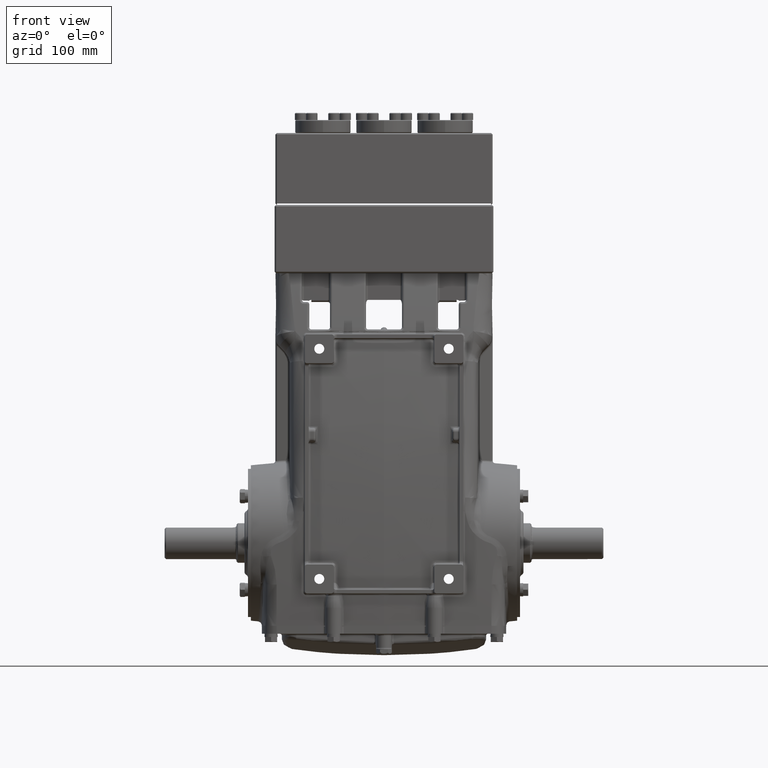
[diagram: clean part render]
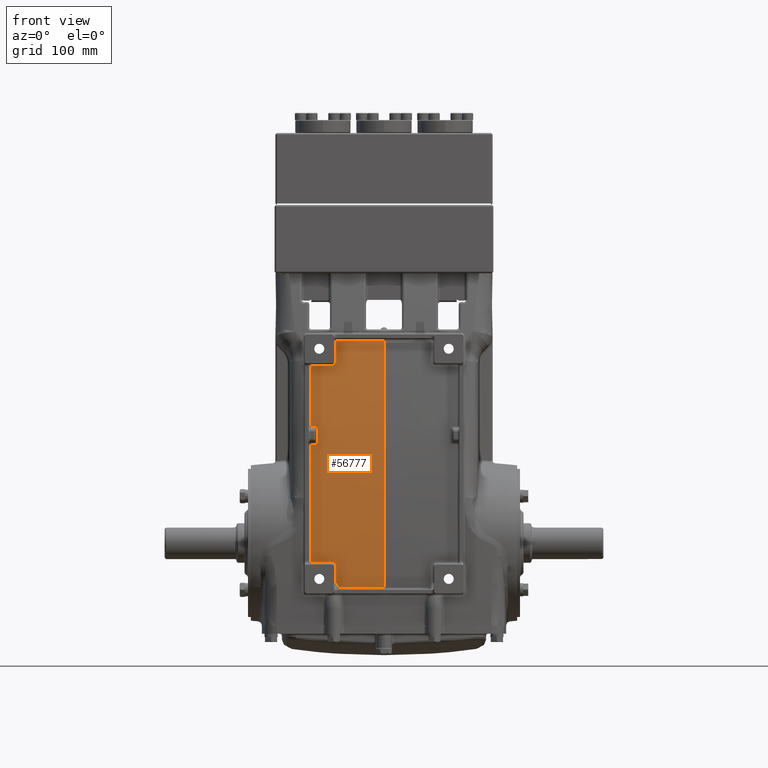
[diagram: same view with one face highlighted and labeled with its STEP entity id]
A machine part, front view. The second image highlights one B-rep face of the part: STEP entity #56777.
In plain terms, the highlighted face is a freeform B-spline surface patch.
Its self-contained STEP definition (entity closure, byte-faithful):
#123 = CARTESIAN_POINT ( 'NONE',  ( -2.792751531202446902, -3.853427452750522342, 9.720233864941249635 ) ) ;
#383 = CARTESIAN_POINT ( 'NONE',  ( -2.708190288782601929, -4.552099645568209674, -4.656973560824543057 ) ) ;
#703 = CARTESIAN_POINT ( 'NONE',  ( -2.869281754821064290, -3.852085522503557069, 9.708001295117043128 ) ) ;
#2164 = VERTEX_POINT ( 'NONE', #62382 ) ;
#2821 = CARTESIAN_POINT ( 'NONE',  ( -4.009067684533873965, -4.561309355163068346, -1.063256557448129414 ) ) ;
#2849 = ORIENTED_EDGE ( 'NONE', *, *, #35908, .T. ) ;
#3254 = CARTESIAN_POINT ( 'NONE',  ( -10.04577710926004208, -2.315852591883929890, 14.76377952755905376 ) ) ;
#3642 = CARTESIAN_POINT ( 'NONE',  ( -8.065446248077345004, -3.888393654132777488, 8.422581710757270912 ) ) ;
#3858 = CARTESIAN_POINT ( 'NONE',  ( -2.633408173276915676, -4.626008312478406381, -1.299123915918647620 ) ) ;
#3947 = CARTESIAN_POINT ( 'NONE',  ( -2.561217022510075658, -4.622174225298794070, -2.252299614874098577 ) ) ;
#4032 = CARTESIAN_POINT ( 'NONE',  ( -9.373807410501107995, -3.984680738766252173, -4.527559055118117293 ) ) ;
#4274 = CARTESIAN_POINT ( 'NONE',  ( -2.633461050662142977, -3.655664824017160974, 11.08388957593362711 ) ) ;
#4431 = CARTESIAN_POINT ( 'NONE',  ( -8.687254691438219822, -2.497755069112371995, 14.76377952755909462 ) ) ;
#4737 = CARTESIAN_POINT ( 'NONE',  ( -1.633027103211280417, -4.651716990583321554, -2.439146517294747962 ) ) ;
#4821 = CARTESIAN_POINT ( 'NONE',  ( -1.924953776098369485, -4.578667073187570047, -4.592266307971317296 ) ) ;
#4864 = B_SPLINE_CURVE_WITH_KNOTS ( 'NONE', 3,
 ( #30299, #42314, #24671, #67544 ),
 .UNSPECIFIED., .F., .F.,
 ( 4, 4 ),
 ( 0.000000000000000000, 0.08500869428581235565 ),
 .UNSPECIFIED. ) ;
#4993 = ORIENTED_EDGE ( 'NONE', *, *, #56991, .F. ) ;
#5212 = CARTESIAN_POINT ( 'NONE',  ( -0.2938242304873521227, -3.031496062992124596, 14.76377952755905376 ) ) ;
#5352 = CARTESIAN_POINT ( 'NONE',  ( -2.853661428704624470, -3.852718271660905192, 9.708001154008286449 ) ) ;
#5615 = CARTESIAN_POINT ( 'NONE',  ( -5.413753015067796603, -4.392851647018765959, -4.721680813677779476 ) ) ;
#5753 = CARTESIAN_POINT ( 'NONE',  ( -2.645681255259437759, -3.838088212996774384, 9.868500916384387978 ) ) ;
#5806 = CARTESIAN_POINT ( 'NONE',  ( -4.009099260313161217, -4.191345367742774108, 6.386217024925107566 ) ) ;
#5987 = CARTESIAN_POINT ( 'NONE',  ( -2.668988596127266799, -4.624672092610369489, -1.174300191169862284 ) ) ;
#5993 = CARTESIAN_POINT ( 'NONE',  ( -0.7397320881632531986, -4.600979020265389074, -4.592266307971323513 ) ) ;
#6387 = CARTESIAN_POINT ( 'NONE',  ( -2.764743968394219653, -4.620880156396577121, -1.087110397389638772 ) ) ;
#6393 = CARTESIAN_POINT ( 'NONE',  ( -4.639310515179054129, -4.448246577413247138, -4.721680813677765265 ) ) ;
#6592 = CARTESIAN_POINT ( 'NONE',  ( -3.616051193212727721, -4.212515188752981921, 6.386213672272969433 ) ) ;
#7096 = CARTESIAN_POINT ( 'NONE',  ( -3.616044454389348850, -4.301933441501103239, 5.403433961941422226 ) ) ;
#7424 = B_SPLINE_CURVE_WITH_KNOTS ( 'NONE', 3,
 ( #63574, #7918, #8717, #19533 ),
 .UNSPECIFIED., .F., .F.,
 ( 4, 4 ),
 ( 1.387778780781445676E-17, 0.02898646123601396341 ),
 .UNSPECIFIED. ) ;
#7689 = CARTESIAN_POINT ( 'NONE',  ( -4.009091750255389108, -4.280763994658505212, 5.403436896546486956 ) ) ;
#7918 = CARTESIAN_POINT ( 'NONE',  ( -3.629276353741744732, -4.582824952503464999, -1.063256691878862847 ) ) ;
#8559 = CARTESIAN_POINT ( 'NONE',  ( -3.616051193212727721, -4.212515188752981921, 6.386213672272969433 ) ) ;
#8717 = CARTESIAN_POINT ( 'NONE',  ( -3.249324048445274560, -4.601277251705913507, -1.063256823771190129 ) ) ;
#9615 = CARTESIAN_POINT ( 'NONE',  ( -4.009084545783799136, -4.366297798552408516, 4.327476322675768650 ) ) ;
#9646 = CARTESIAN_POINT ( 'NONE',  ( -10.04577710926009182, -3.887951540411600959, -4.592266307971328843 ) ) ;
#10037 = CARTESIAN_POINT ( 'NONE',  ( -9.804603538636959215, -4.195612680810072881, 1.943166230203482225 ) ) ;
#10424 = CARTESIAN_POINT ( 'NONE',  ( -6.832793557027403430, -4.274448491943524608, -4.592266307971325290 ) ) ;
#10466 = VERTEX_POINT ( 'NONE', #61830 ) ;
#10827 = CARTESIAN_POINT ( 'NONE',  ( -2.645560017094310101, -4.625577472127104350, -1.222825218996533625 ) ) ;
#10833 = CARTESIAN_POINT ( 'NONE',  ( -8.030208900442749709, -2.576162122246953956, 14.76377952755909284 ) ) ;
#10973 = CARTESIAN_POINT ( 'NONE',  ( -2.712919804652293099, -3.849994944742353820, 9.766627177032775720 ) ) ;
#11228 = CARTESIAN_POINT ( 'NONE',  ( -2.821676141139911831, -2.978136681165881150, 14.76377952755918699 ) ) ;
#11376 = CARTESIAN_POINT ( 'NONE',  ( -2.681283402009699390, -3.846391426601914798, 9.800633888478397893 ) ) ;
#11477 = B_SPLINE_CURVE_WITH_KNOTS ( 'NONE', 3,
 ( #34638, #16642, #78254, #41047 ),
 .UNSPECIFIED., .F., .F.,
 ( 4, 4 ),
 ( 0.000000000000000000, 1.000000000000000000 ),
 .UNSPECIFIED. ) ;
#11628 = CARTESIAN_POINT ( 'NONE',  ( -4.649375982716229316, -4.726046614213196939, 1.943166230203471567 ) ) ;
#11949 = CARTESIAN_POINT ( 'NONE',  ( -4.009132247748159017, -3.796718537745803257, 9.708013700501851417 ) ) ;
#12019 = CARTESIAN_POINT ( 'NONE',  ( -2.725582099047808349, -4.622441117694928714, -1.111434826511108476 ) ) ;
#12025 = CARTESIAN_POINT ( 'NONE',  ( -2.784098044332857125, -4.295940717290989141, 8.422581710757331308 ) ) ;
#12089 = B_SPLINE_CURVE_WITH_KNOTS ( 'NONE', 3,
 ( #22921, #47337, #71789, #16934 ),
 .UNSPECIFIED., .F., .F.,
 ( 4, 4 ),
 ( 0.000000000000000000, 0.02928519298519093733 ),
 .UNSPECIFIED. ) ;
#12165 = CARTESIAN_POINT ( 'NONE',  ( -2.838203157779700447, -3.853123549072879683, 9.709538004407617606 ) ) ;
#12408 = CARTESIAN_POINT ( 'NONE',  ( -2.786150692338191348, -4.620022506536527906, -1.078245028240014669 ) ) ;
#12415 = CARTESIAN_POINT ( 'NONE',  ( -0.2832288182468694071, -4.347787444496944431, 8.422581710757240714 ) ) ;
#12912 = CARTESIAN_POINT ( 'NONE',  ( -3.616044454389348850, -4.301933441501103239, 5.403433961941422226 ) ) ;
#13513 = CARTESIAN_POINT ( 'NONE',  ( -3.629334840244932803, -3.818235481448486457, 9.708008868474776065 ) ) ;
#14207 = CARTESIAN_POINT ( 'NONE',  ( -1.756019466418914821, -3.688288809523445622, 11.08388144345502546 ) ) ;
#14917 = ORIENTED_EDGE ( 'NONE', *, *, #48641, .T. ) ;
#15317 = CARTESIAN_POINT ( 'NONE',  ( -2.633451682630481017, -3.827767035953573593, 9.943866171489569084 ) ) ;
#15572 = CARTESIAN_POINT ( 'NONE',  ( -2.595409234286698119, -4.621463490786902106, -2.209614886988585436 ) ) ;
#15659 = CARTESIAN_POINT ( 'NONE',  ( -6.805403164105268132, -4.550193385702355542, 1.943166230203468459 ) ) ;
#16447 = CARTESIAN_POINT ( 'NONE',  ( -8.749245569794030786, -4.335251050053626543, 1.943166230203497991 ) ) ;
#16642 = CARTESIAN_POINT ( 'NONE',  ( 2.138533143211187579E-14, -4.413031083295456014, 6.613240948986014445 ) ) ;
#16738 = CARTESIAN_POINT ( 'NONE',  ( -2.869235462077895704, -4.616673264439084434, -1.063256936052564772 ) ) ;
#16829 = CARTESIAN_POINT ( 'NONE',  ( -8.781170872147274764, -4.052738791544205910, -4.721680813677760824 ) ) ;
#16934 = CARTESIAN_POINT ( 'NONE',  ( -2.633451682630481017, -3.827767035953573593, 9.943866171489569084 ) ) ;
#17225 = CARTESIAN_POINT ( 'NONE',  ( -3.729488559111926893, -4.251260959985939003, 8.422581710757222950 ) ) ;
#17616 = CARTESIAN_POINT ( 'NONE',  ( -1.925340981245132754, -4.581360688026997252, -4.527559055118101305 ) ) ;
#17753 = CARTESIAN_POINT ( 'NONE',  ( -2.807609554183104539, -3.853480852725197803, 9.715674560606947452 ) ) ;
#17994 = CARTESIAN_POINT ( 'NONE',  ( -2.751205790464350098, -4.621420892464555230, -1.094344180641083630 ) ) ;
#18002 = CARTESIAN_POINT ( 'NONE',  ( -0.2619320396434957066, -4.603595011519804103, -4.592266307971327954 ) ) ;
#18139 = CARTESIAN_POINT ( 'NONE',  ( -2.691205871054139109, -3.847737429745157645, 9.788464922674490865 ) ) ;
#18401 = CARTESIAN_POINT ( 'NONE',  ( -0.2620379937659005343, -4.606299212598425008, -4.527559055118111964 ) ) ;
#18552 = VERTEX_POINT ( 'NONE', #7689 ) ;
#18756 = CARTESIAN_POINT ( 'NONE',  ( -2.633408177355273327, -4.625790264749591429, -1.589326262183604399 ) ) ;
#18785 = CARTESIAN_POINT ( 'NONE',  ( -5.408835557366600710, -4.671702001365406254, 1.943166230203468459 ) ) ;
#18817 = ORIENTED_EDGE ( 'NONE', *, *, #75101, .T. ) ;
#18984 = CARTESIAN_POINT ( 'NONE',  ( -3.878103101087254867, -4.198766236469249513, 6.386215845647989831 ) ) ;
#19533 = CARTESIAN_POINT ( 'NONE',  ( -2.869235462077895704, -4.616673264439084434, -1.063256936052564772 ) ) ;
#20295 = VERTEX_POINT ( 'NONE', #4274 ) ;
#20401 = CARTESIAN_POINT ( 'NONE',  ( -4.009087921353016171, -4.326285157352316446, 4.865810634977489002 ) ) ;
#20460 = CARTESIAN_POINT ( 'NONE',  ( -3.878095849180120069, -4.288184763484342632, 5.403435864250364595 ) ) ;
#20797 = EDGE_CURVE ( 'NONE', #77422, #10466, #66393, .T. ) ;
#20916 = CARTESIAN_POINT ( 'NONE',  ( -3.616051193212727721, -4.212515188752981921, 6.386213672272969433 ) ) ;
#21195 = CARTESIAN_POINT ( 'NONE',  ( -4.009076246432647928, -4.464142590308505021, 2.711700979093898400 ) ) ;
#21228 = CARTESIAN_POINT ( 'NONE',  ( -6.225699120453859869, -4.603769284748519652, 1.943166230203460909 ) ) ;
#21590 = CARTESIAN_POINT ( 'NONE',  ( -4.009078708508510225, -4.435224281480957487, 3.250428491501163197 ) ) ;
#21626 = CARTESIAN_POINT ( 'NONE',  ( -8.135920943346530265, -4.138785722996266792, -4.527559055118102194 ) ) ;
#21838 = EDGE_CURVE ( 'NONE', #18552, #64262, #78548, .T. ) ;
#22028 = CARTESIAN_POINT ( 'NONE',  ( -8.718250130616125304, -3.810182812353625881, 8.422581710757270912 ) ) ;
#22427 = CARTESIAN_POINT ( 'NONE',  ( -10.04577710926007583, -4.161075849352311451, 1.943166230203482225 ) ) ;
#22636 = CARTESIAN_POINT ( 'NONE',  ( -2.633408445068508463, -4.620541372319329376, -2.169705992555975183 ) ) ;
#22803 = CARTESIAN_POINT ( 'NONE',  ( -2.793509117844862999, -4.619727269208481424, -1.075614104504940327 ) ) ;
#22811 = CARTESIAN_POINT ( 'NONE',  ( -9.813594160922399112, -3.921200885824479787, -4.592266307971329731 ) ) ;
#22921 = CARTESIAN_POINT ( 'NONE',  ( -2.633461050662142977, -3.655664824017160974, 11.08388957593362711 ) ) ;
#23117 = CARTESIAN_POINT ( 'NONE',  ( -2.500623379743942998, -4.623138100157921926, -2.342764431144773951 ) ) ;
#23202 = CARTESIAN_POINT ( 'NONE',  ( -3.677771778863302199, -4.509885198506749404, -4.592266307971359041 ) ) ;
#23342 = CARTESIAN_POINT ( 'NONE',  ( -2.634958507792321214, -3.832110682459297202, 9.913170577341473333 ) ) ;
#23596 = CARTESIAN_POINT ( 'NONE',  ( -0.8149290258095023276, -3.028218001076291355, 14.76377952755897383 ) ) ;
#23973 = ORIENTED_EDGE ( 'NONE', *, *, #21838, .T. ) ;
#23993 = CARTESIAN_POINT ( 'NONE',  ( -1.270915354491187976, -4.587217357037975951, -4.721680813677750166 ) ) ;
#24130 = CARTESIAN_POINT ( 'NONE',  ( -2.750807953098200365, -3.852318133119502441, 9.739776564277198290 ) ) ;
#24385 = CARTESIAN_POINT ( 'NONE',  ( -5.900791666314808552E-15, -4.606299212598425008, -4.527559055118112852 ) ) ;
#24582 = CARTESIAN_POINT ( 'NONE',  ( -3.616048795176231678, -4.244373793230554526, 6.058810424978555709 ) ) ;
#24671 = CARTESIAN_POINT ( 'NONE',  ( -4.009108318091917589, -4.083358441636023350, 7.495968248677195689 ) ) ;
#24791 = CARTESIAN_POINT ( 'NONE',  ( -5.404061326588741387, -4.143078516905423392, 8.422581710757231832 ) ) ;
#25009 = CARTESIAN_POINT ( 'NONE',  ( -2.633461050662142977, -3.655664824017160974, 11.08388957593362711 ) ) ;
#25373 = B_SPLINE_CURVE_WITH_KNOTS ( 'NONE', 3,
 ( #5806, #18984, #67855, #8559 ),
 .UNSPECIFIED., .F., .F.,
 ( 4, 4 ),
 ( 1.947840340079970283E-16, 0.009997897390823021896 ),
 .UNSPECIFIED. ) ;
#26375 = EDGE_CURVE ( 'NONE', #10466, #72825, #26461, .T. ) ;
#26461 = B_SPLINE_CURVE_WITH_KNOTS ( 'NONE', 3,
 ( #703, #43150, #13513, #11949 ),
 .UNSPECIFIED., .F., .F.,
 ( 4, 4 ),
 ( 0.000000000000000000, 0.02898692912293929919 ),
 .UNSPECIFIED. ) ;
#26841 = B_SPLINE_CURVE_WITH_KNOTS ( 'NONE', 3,
 ( #12912, #68570, #20460, #38105 ),
 .UNSPECIFIED., .F., .F.,
 ( 4, 4 ),
 ( 6.938893903907228378E-17, 0.009997877322231155453 ),
 .UNSPECIFIED. ) ;
#27246 = CARTESIAN_POINT ( 'NONE',  ( -6.188065023527709485, -2.761802089765181822, 14.76377952755900935 ) ) ;
#27611 = CARTESIAN_POINT ( 'NONE',  ( -4.009070229047597245, -4.534280010405843164, 1.094908286316123025 ) ) ;
#27646 = CARTESIAN_POINT ( 'NONE',  ( -10.04577710926006162, -3.632143973388746616, 8.422581710757240714 ) ) ;
#28032 = CARTESIAN_POINT ( 'NONE',  ( -8.780550963363717543, -4.058224466466718638, -4.592266307971327954 ) ) ;
#28349 = CARTESIAN_POINT ( 'NONE',  ( -2.473840061928060496, -4.623398243447898182, -2.390294904614319815 ) ) ;
#28432 = CARTESIAN_POINT ( 'NONE',  ( -8.136625690299220892, -4.133296123846644576, -4.656973560824535063 ) ) ;
#28827 = CARTESIAN_POINT ( 'NONE',  ( -9.374243253404326737, -3.979213428622593973, -4.656973560824549274 ) ) ;
#29139 = CARTESIAN_POINT ( 'NONE',  ( -2.613787791955300754, -4.621037681999546010, -2.189111230793896024 ) ) ;
#29220 = CARTESIAN_POINT ( 'NONE',  ( -1.371080488539591968, -3.018683991878269079, 14.76377952755904843 ) ) ;
#29614 = CARTESIAN_POINT ( 'NONE',  ( -2.708941850718743272, -4.557477794633046031, -4.527559055118110187 ) ) ;
#29761 = CARTESIAN_POINT ( 'NONE',  ( -2.639396831441881641, -3.835158132531951924, 9.890685908161072959 ) ) ;
#30014 = CARTESIAN_POINT ( 'NONE',  ( -4.639408238164851817, -4.450943665149169171, -4.656973560824549274 ) ) ;
#30299 = CARTESIAN_POINT ( 'NONE',  ( -4.009132247748159017, -3.796718537745803257, 9.708013700501851417 ) ) ;
#30412 = CARTESIAN_POINT ( 'NONE',  ( 1.301789904605454270E-14, -3.031496062992124596, 14.76377952755905376 ) ) ;
#30711 = CARTESIAN_POINT ( 'NONE',  ( -2.449077410714803449, -4.623510098356429232, -2.439147228008068602 ) ) ;
#30798 = CARTESIAN_POINT ( 'NONE',  ( -5.413705272760017451, -4.395558932012422204, -4.656973560824563485 ) ) ;
#31656 = VERTEX_POINT ( 'NONE', #39324 ) ;
#34043 = CARTESIAN_POINT ( 'NONE',  ( -9.308430975018255893, -2.418713787122484415, 14.76377952755900935 ) ) ;
#34435 = FACE_OUTER_BOUND ( 'NONE', #53400, .T. ) ;
#34638 = CARTESIAN_POINT ( 'NONE',  ( 6.222606604880411818E-16, -3.704600613205711657, 11.08387675029587349 ) ) ;
#34792 = VERTEX_POINT ( 'NONE', #22636 ) ;
#34830 = CARTESIAN_POINT ( 'NONE',  ( -7.550252404699338449, -4.201328635874852502, -4.592266307971317296 ) ) ;
#35225 = CARTESIAN_POINT ( 'NONE',  ( -2.641027938767021688, -4.625748410727640980, -1.237653653290637035 ) ) ;
#35231 = CARTESIAN_POINT ( 'NONE',  ( -4.639603684136446304, -4.456337840621012347, -4.527559055118117293 ) ) ;
#35274 = VERTEX_POINT ( 'NONE', #47153 ) ;
#35371 = CARTESIAN_POINT ( 'NONE',  ( -2.744094817158744259, -3.852008386760988223, 9.743824653417735959 ) ) ;
#35621 = CARTESIAN_POINT ( 'NONE',  ( -6.244892509886193821, -4.326280182861818702, -4.656973560824554603 ) ) ;
#35908 = EDGE_CURVE ( 'NONE', #35274, #20295, #74838, .T. ) ;
#36017 = CARTESIAN_POINT ( 'NONE',  ( -4.639505961150648616, -4.453640752885090315, -4.592266307971333283 ) ) ;
#36183 = ORIENTED_EDGE ( 'NONE', *, *, #39415, .T. ) ;
#36413 = CARTESIAN_POINT ( 'NONE',  ( -2.691688546195931675, -4.623782299950007335, -1.143123225144427435 ) ) ;
#36419 = CARTESIAN_POINT ( 'NONE',  ( -0.7649642831874112758, -4.873881172605420531, 1.943166230203459577 ) ) ;
#36558 = CARTESIAN_POINT ( 'NONE',  ( -2.771421394848513575, -3.853013347860668514, 9.729127848689499203 ) ) ;
#36806 = CARTESIAN_POINT ( 'NONE',  ( -5.399287095810881176, -2.827095526904189082, 14.76377952755905199 ) ) ;
#37225 = B_SPLINE_SURFACE_WITH_KNOTS ( 'NONE', 3, 3, ( 
 ( #3254, #27646, #22427, #46065, #9646, #52053, #46462 ),
 ( #59274, #53242, #10037, #70907, #22811, #40457, #58875 ),
 ( #34043, #40065, #70513, #4032, #47237, #28827, #64904 ),
 ( #4431, #22028, #16447, #71683, #28032, #76473, #16829 ),
 ( #10833, #3642, #71297, #21626, #58480, #28432, #51667 ),
 ( #45667, #40853, #52858, #41238, #34830, #65697, #65297 ),
 ( #77279, #76875, #15659, #70123, #10424, #46852, #57684 ),
 ( #27246, #76086, #21228, #64107, #64516, #35621, #72465 ),
 ( #36806, #24791, #18785, #48414, #72076, #30798, #5615 ),
 ( #42043, #61251, #11628, #35231, #36017, #30014, #6393 ),
 ( #41647, #17225, #55220, #59663, #23202, #43220, #54417 ),
 ( #11228, #12025, #79243, #29614, #48019, #383, #49205 ),
 ( #66872, #78458, #73643, #17616, #4821, #66083, #67656 ),
 ( #29220, #78852, #54024, #53631, #60451, #78064, #23993 ),
 ( #23596, #66473, #36419, #47619, #5993, #60052, #73253 ),
 ( #5212, #12415, #72858, #18401, #18002, #42432, #60852 ),
 ( #30412, #48802, #54819, #24385, #42828, #67264, #45184 ) ),
 .UNSPECIFIED., .F., .F., .F.,
 ( 4, 1, 1, 1, 1, 1, 1, 1, 1, 1, 1, 1, 1, 1, 4 ),
 ( 4, 3, 4 ),
 ( 0.6416899016319266291, 0.6680709144412995126, 0.6910511929030633826, 0.7070270417424607823, 0.7380269954074184513, 0.7537315596691966935, 0.7829012457735833319, 0.7996549019161131033, 0.8403417066807266078, 0.8632468234832121334, 0.8997714546634835164, 0.9419247260028263957, 0.9467756368356592400, 0.9704551915184829181, 1.000000000000000000 ),
 ( 0.000000000000000000, 1.000000000000000000, 1.010000000000000009 ),
 .UNSPECIFIED. ) ;
#37333 = EDGE_CURVE ( 'NONE', #65104, #47471, #39474, .T. ) ;
#38105 = CARTESIAN_POINT ( 'NONE',  ( -4.009091750255389108, -4.280763994658505212, 5.403436896546486956 ) ) ;
#38338 = ORIENTED_EDGE ( 'NONE', *, *, #42303, .T. ) ;
#38349 = CARTESIAN_POINT ( 'NONE',  ( -2.633408267973377459, -4.623967929607251115, -1.879523794570239437 ) ) ;
#38596 = CARTESIAN_POINT ( 'NONE',  ( -0.8780478353440256400, -3.704600613205713433, 11.08387675029587172 ) ) ;
#38870 = B_SPLINE_CURVE_WITH_KNOTS ( 'NONE', 3,
 ( #30711, #4737, #47936, #66389 ),
 .UNSPECIFIED., .F., .F.,
 ( 4, 4 ),
 ( 0.000000000000000000, 0.06222008268736683306 ),
 .UNSPECIFIED. ) ;
#39119 = ORIENTED_EDGE ( 'NONE', *, *, #37333, .T. ) ;
#39324 = CARTESIAN_POINT ( 'NONE',  ( 8.307133097801747765E-16, -4.665834705919339243, -2.439145830971373829 ) ) ;
#39415 = EDGE_CURVE ( 'NONE', #72825, #2164, #4864, .T. ) ;
#39474 = B_SPLINE_CURVE_WITH_KNOTS ( 'NONE', 3,
 ( #77665, #41231, #61245, #72852, #54017, #22803, #12408, #6387, #17994, #12019, #53235, #36413, #60845, #5987, #59657, #71677, #65691, #10827, #35225, #78056, #74821, #68450 ),
 .UNSPECIFIED., .F., .F.,
 ( 4, 2, 2, 2, 2, 2, 2, 2, 2, 2, 4 ),
 ( 0.000000000000000000, 0.001170230795047757632, 0.001755346192571658782, 0.002340461590095559933, 0.003510692385143362234, 0.004680923180191164101, 0.005851153975238966402, 0.006436269372762868854, 0.007021384770286770438, 0.008191615565334563198, 0.009361846360382355958 ),
 .UNSPECIFIED. ) ;
#39633 = CARTESIAN_POINT ( 'NONE',  ( -4.009091750255389108, -4.280763994658505212, 5.403436896546486956 ) ) ;
#39978 = CARTESIAN_POINT ( 'NONE',  ( -2.586632401729381137, -4.621654160764756547, -2.220136445856032648 ) ) ;
#40065 = CARTESIAN_POINT ( 'NONE',  ( -9.330223120179205409, -3.732059769306459884, 8.422581710757210516 ) ) ;
#40439 = ORIENTED_EDGE ( 'NONE', *, *, #57086, .T. ) ;
#40457 = CARTESIAN_POINT ( 'NONE',  ( -9.813683176984632439, -3.918483937359276137, -4.656973560824545721 ) ) ;
#40853 = CARTESIAN_POINT ( 'NONE',  ( -7.482576476895471451, -3.952699809518920748, 8.422581710757233608 ) ) ;
#41047 = CARTESIAN_POINT ( 'NONE',  ( 8.307133097801747765E-16, -4.665834705919339243, -2.439145830971373829 ) ) ;
#41231 = CARTESIAN_POINT ( 'NONE',  ( -2.853669760522056009, -4.617303774662096849, -1.063256940650804117 ) ) ;
#41238 = CARTESIAN_POINT ( 'NONE',  ( -7.549915708541110604, -4.204068552081169585, -4.527559055118101305 ) ) ;
#41460 = EDGE_CURVE ( 'NONE', #76233, #31656, #38870, .T. ) ;
#41647 = CARTESIAN_POINT ( 'NONE',  ( -3.755218300529151954, -2.933568249377660919, 14.76377952755903955 ) ) ;
#41649 = VERTEX_POINT ( 'NONE', #7096 ) ;
#41998 = B_SPLINE_CURVE_WITH_KNOTS ( 'NONE', 3,
 ( #58397, #52363, #29139, #15572, #39978, #3947, #46770, #23117, #28349, #47155 ),
 .UNSPECIFIED., .F., .F.,
 ( 4, 2, 2, 2, 4 ),
 ( 0.04411098432046615253, 0.04513956298825744923, 0.04616814165604874592, 0.04822529899163137401, 0.05233961366279665794 ),
 .UNSPECIFIED. ) ;
#42043 = CARTESIAN_POINT ( 'NONE',  ( -4.668920579875790011, -2.879400688205008496, 14.76377952755902889 ) ) ;
#42303 = EDGE_CURVE ( 'NONE', #20295, #77422, #12089, .T. ) ;
#42314 = CARTESIAN_POINT ( 'NONE',  ( -4.009119313203882484, -3.951827351199129978, 8.603249513709112506 ) ) ;
#42432 = CARTESIAN_POINT ( 'NONE',  ( -0.2618260855210908233, -4.600890810441183199, -4.656973560824543945 ) ) ;
#42502 = ORIENTED_EDGE ( 'NONE', *, *, #26375, .T. ) ;
#42828 = CARTESIAN_POINT ( 'NONE',  ( -5.952186459334057860E-15, -4.603595011519804103, -4.592266307971328843 ) ) ;
#43150 = CARTESIAN_POINT ( 'NONE',  ( -3.249376453830433942, -3.836688622418527483, 9.708004728764223046 ) ) ;
#43220 = CARTESIAN_POINT ( 'NONE',  ( -3.677514481449129846, -4.507195010719162731, -4.656973560824575031 ) ) ;
#45184 = CARTESIAN_POINT ( 'NONE',  ( -6.054976045372554899E-15, -4.598186609362562294, -4.721680813677759936 ) ) ;
#45667 = CARTESIAN_POINT ( 'NONE',  ( -7.448906861072648766, -2.639979940783716561, 14.76377952755903600 ) ) ;
#46065 = CARTESIAN_POINT ( 'NONE',  ( -10.04577710926009182, -3.890655741490221864, -4.527559055118112852 ) ) ;
#46230 = CARTESIAN_POINT ( 'NONE',  ( -4.009132247748159017, -3.796718537745803257, 9.708013700501851417 ) ) ;
#46462 = CARTESIAN_POINT ( 'NONE',  ( -10.04577710926009182, -3.882543138254359150, -4.721680813677759936 ) ) ;
#46770 = CARTESIAN_POINT ( 'NONE',  ( -2.545477370009458618, -4.622452418897994519, -2.274529108363807062 ) ) ;
#46852 = CARTESIAN_POINT ( 'NONE',  ( -6.833064749036533492, -4.271718344480565754, -4.656973560824541281 ) ) ;
#47153 = CARTESIAN_POINT ( 'NONE',  ( 6.222606604880411818E-16, -3.704600613205711657, 11.08387675029587349 ) ) ;
#47155 = CARTESIAN_POINT ( 'NONE',  ( -2.449077410714803449, -4.623510098356429232, -2.439147228008068602 ) ) ;
#47237 = CARTESIAN_POINT ( 'NONE',  ( -9.374025331952717366, -3.981947083694422851, -4.592266307971333283 ) ) ;
#47337 = CARTESIAN_POINT ( 'NONE',  ( -2.633457776029218156, -3.715813800803541511, 10.70430508477513953 ) ) ;
#47471 = VERTEX_POINT ( 'NONE', #3858 ) ;
#47619 = CARTESIAN_POINT ( 'NONE',  ( -0.7399819118763637515, -4.603681021773706306, -4.527559055118107523 ) ) ;
#47936 = CARTESIAN_POINT ( 'NONE',  ( -0.8165376980095109261, -4.665834705919338354, -2.439145830971372941 ) ) ;
#48019 = CARTESIAN_POINT ( 'NONE',  ( -2.708566069750672600, -4.554788720100628296, -4.592266307971327066 ) ) ;
#48094 = EDGE_CURVE ( 'NONE', #47471, #34792, #56216, .T. ) ;
#48414 = CARTESIAN_POINT ( 'NONE',  ( -5.413609788144460033, -4.400973501999735582, -4.527559055118132392 ) ) ;
#48552 = CARTESIAN_POINT ( 'NONE',  ( -2.764453734349016312, -3.852819460961609543, 9.732441120458709349 ) ) ;
#48641 = EDGE_CURVE ( 'NONE', #64262, #65104, #7424, .T. ) ;
#48802 = CARTESIAN_POINT ( 'NONE',  ( 5.544917873066535615E-15, -4.347787444496944431, 8.422581710757240714 ) ) ;
#49006 = CARTESIAN_POINT ( 'NONE',  ( -3.616044454389348850, -4.301933441501103239, 5.403433961941422226 ) ) ;
#49205 = CARTESIAN_POINT ( 'NONE',  ( -2.707814507814531257, -4.549410571035791051, -4.721680813677759048 ) ) ;
#51667 = CARTESIAN_POINT ( 'NONE',  ( -8.136978063775567094, -4.130551324271833913, -4.721680813677751054 ) ) ;
#52053 = CARTESIAN_POINT ( 'NONE',  ( -10.04577710926009182, -3.885247339332980054, -4.656973560824543945 ) ) ;
#52363 = CARTESIAN_POINT ( 'NONE',  ( -2.623396351544327043, -4.620802285514722385, -2.179126252549555609 ) ) ;
#52858 = CARTESIAN_POINT ( 'NONE',  ( -7.516246092718290583, -4.478060172712870823, 1.943166230203484224 ) ) ;
#53235 = CARTESIAN_POINT ( 'NONE',  ( -2.713445904319685908, -4.622922570484267801, -1.121384847322080436 ) ) ;
#53242 = CARTESIAN_POINT ( 'NONE',  ( -9.795701932413749091, -3.667955543504810123, 8.422581710757242490 ) ) ;
#53400 = EDGE_LOOP ( 'NONE', ( #36183, #18817, #40439, #74952, #23973, #14917, #39119, #76447, #76794, #77773, #4993, #2849, #38338, #73315, #42502 ) ) ;
#53631 = CARTESIAN_POINT ( 'NONE',  ( -1.271907088491667448, -4.595311714543250936, -4.527559055118103082 ) ) ;
#54017 = CARTESIAN_POINT ( 'NONE',  ( -2.808312386648814218, -4.619132474409107125, -1.071132298595862675 ) ) ;
#54024 = CARTESIAN_POINT ( 'NONE',  ( -1.304964888507643472, -4.865123631385777081, 1.943166230203488221 ) ) ;
#54175 = CARTESIAN_POINT ( 'NONE',  ( -2.724775699095790316, -3.850923477165796083, 9.756821694830732028 ) ) ;
#54417 = CARTESIAN_POINT ( 'NONE',  ( -3.677257184034957049, -4.504504822931576058, -4.721680813677791022 ) ) ;
#54561 = CARTESIAN_POINT ( 'NONE',  ( -2.633451561824138754, -3.829986750973441545, 9.928396051215916174 ) ) ;
#54819 = CARTESIAN_POINT ( 'NONE',  ( -7.613123643899153952E-16, -4.876719320460511042, 1.943166230203482225 ) ) ;
#55220 = CARTESIAN_POINT ( 'NONE',  ( -3.703758817694700944, -4.781594165052963419, 1.943166230203458023 ) ) ;
#55366 = CARTESIAN_POINT ( 'NONE',  ( -2.664278630473030596, -3.843399480132904777, 9.826262832668120950 ) ) ;
#56216 = B_SPLINE_CURVE_WITH_KNOTS ( 'NONE', 3,
 ( #68425, #18756, #38349, #68821 ),
 .UNSPECIFIED., .F., .F.,
 ( 4, 4 ),
 ( 0.000000000000000000, 0.02211340015105577039 ),
 .UNSPECIFIED. ) ;
#56230 = CARTESIAN_POINT ( 'NONE',  ( 6.222606604880411818E-16, -3.704600613205711657, 11.08387675029587349 ) ) ;
#56777 = ADVANCED_FACE ( 'NONE', ( #34435 ), #37225, .F. ) ;
#56991 = EDGE_CURVE ( 'NONE', #35274, #31656, #11477, .T. ) ;
#57086 = EDGE_CURVE ( 'NONE', #63470, #41649, #59262, .T. ) ;
#57684 = CARTESIAN_POINT ( 'NONE',  ( -6.833335941045664441, -4.268988197017606900, -4.721680813677756383 ) ) ;
#58397 = CARTESIAN_POINT ( 'NONE',  ( -2.633408445068508463, -4.620541372319329376, -2.169705992555975183 ) ) ;
#58449 = CARTESIAN_POINT ( 'NONE',  ( -4.009068041970367702, -4.558888634782253035, 0.01623320812878846497 ) ) ;
#58480 = CARTESIAN_POINT ( 'NONE',  ( -8.136273316822876467, -4.136040923421456128, -4.592266307971319073 ) ) ;
#58875 = CARTESIAN_POINT ( 'NONE',  ( -9.813772193046863990, -3.915766988894072043, -4.721680813677761712 ) ) ;
#59262 = B_SPLINE_CURVE_WITH_KNOTS ( 'NONE', 3,
 ( #6592, #24582, #66671, #49006 ),
 .UNSPECIFIED., .F., .F.,
 ( 4, 4 ),
 ( 0.000000000000000000, 0.02506584408557438123 ),
 .UNSPECIFIED. ) ;
#59274 = CARTESIAN_POINT ( 'NONE',  ( -9.786800326190538968, -2.352938900658293697, 14.76377952755905554 ) ) ;
#59657 = CARTESIAN_POINT ( 'NONE',  ( -2.664969661778525900, -4.624828674874356338, -1.180995928298864461 ) ) ;
#59663 = CARTESIAN_POINT ( 'NONE',  ( -3.678029076277474552, -4.512575386294336077, -4.527559055118143050 ) ) ;
#60052 = CARTESIAN_POINT ( 'NONE',  ( -0.7394822644501427567, -4.598277018757071843, -4.656973560824539504 ) ) ;
#60195 = CARTESIAN_POINT ( 'NONE',  ( -2.648289797643023302, -3.839036234659721103, 9.861161471962155645 ) ) ;
#60451 = CARTESIAN_POINT ( 'NONE',  ( -1.271576510491507550, -4.592613595374825941, -4.592266307971319073 ) ) ;
#60597 = CARTESIAN_POINT ( 'NONE',  ( -2.633451682630481017, -3.827767035953573593, 9.943866171489569084 ) ) ;
#60845 = CARTESIAN_POINT ( 'NONE',  ( -2.681924243328158042, -4.624166295150564210, -1.154984678794387598 ) ) ;
#60852 = CARTESIAN_POINT ( 'NONE',  ( -0.2617201313986859956, -4.598186609362562294, -4.721680813677759048 ) ) ;
#61245 = CARTESIAN_POINT ( 'NONE',  ( -2.838363699798844841, -4.617922095803651317, -1.064783195785242498 ) ) ;
#61251 = CARTESIAN_POINT ( 'NONE',  ( -4.659148281296010552, -4.196403403979729774, 8.422581710757222950 ) ) ;
#61830 = CARTESIAN_POINT ( 'NONE',  ( -2.869281754821064290, -3.852085522503557069, 9.708001295117043128 ) ) ;
#62382 = CARTESIAN_POINT ( 'NONE',  ( -4.009099260313161217, -4.191345367742774108, 6.386217024925107566 ) ) ;
#63470 = VERTEX_POINT ( 'NONE', #20916 ) ;
#63574 = CARTESIAN_POINT ( 'NONE',  ( -4.009067684533873965, -4.561309355163068346, -1.063256557448129414 ) ) ;
#64107 = CARTESIAN_POINT ( 'NONE',  ( -6.244516168916932841, -4.331721145643910198, -4.527559055118123510 ) ) ;
#64262 = VERTEX_POINT ( 'NONE', #71188 ) ;
#64516 = CARTESIAN_POINT ( 'NONE',  ( -6.244704339401563331, -4.329000664252864006, -4.592266307971338613 ) ) ;
#64904 = CARTESIAN_POINT ( 'NONE',  ( -9.374461174855936108, -3.976479773550764651, -4.721680813677765265 ) ) ;
#65104 = VERTEX_POINT ( 'NONE', #16738 ) ;
#65297 = CARTESIAN_POINT ( 'NONE',  ( -7.550925797015794139, -4.195848803462219223, -4.721680813677748390 ) ) ;
#65691 = CARTESIAN_POINT ( 'NONE',  ( -2.654394645030112354, -4.625238377442803639, -1.201553123469140116 ) ) ;
#65697 = CARTESIAN_POINT ( 'NONE',  ( -7.550589100857566294, -4.198588719668536307, -4.656973560824532399 ) ) ;
#66083 = CARTESIAN_POINT ( 'NONE',  ( -1.924566570951606215, -4.575973458348141953, -4.656973560824534175 ) ) ;
#66389 = CARTESIAN_POINT ( 'NONE',  ( 8.307133097801747765E-16, -4.665834705919339243, -2.439145830971373829 ) ) ;
#66393 = B_SPLINE_CURVE_WITH_KNOTS ( 'NONE', 3,
 ( #60597, #54561, #23342, #29761, #78989, #5753, #60195, #67401, #55366, #11376, #18139, #10973, #54175, #35371, #24130, #48552, #36558, #123, #17753, #12165, #5352, #72994 ),
 .UNSPECIFIED., .F., .F.,
 ( 4, 2, 2, 2, 2, 2, 2, 2, 2, 2, 4 ),
 ( 0.000000000000000000, 0.001174131697665091630, 0.001761197546497641564, 0.002348263395330191499, 0.003522395092995463540, 0.004696526790660735147, 0.005870658488326007188, 0.006457724337158620223, 0.007044790185991232391, 0.008218921883656457594, 0.009393053581321683665 ),
 .UNSPECIFIED. ) ;
#66473 = CARTESIAN_POINT ( 'NONE',  ( -0.7899466544984574679, -4.344729339611482999, 8.422581710757190976 ) ) ;
#66671 = CARTESIAN_POINT ( 'NONE',  ( -3.616046548859178866, -4.274180461905598527, 5.731210759690506862 ) ) ;
#66872 = CARTESIAN_POINT ( 'NONE',  ( -2.041502525274107249, -3.003381666662710892, 14.76377952755913370 ) ) ;
#67264 = CARTESIAN_POINT ( 'NONE',  ( -6.003581252353306379E-15, -4.600890810441183199, -4.656973560824543945 ) ) ;
#67394 = CARTESIAN_POINT ( 'NONE',  ( -2.449077410714803449, -4.623510098356429232, -2.439147228008068602 ) ) ;
#67401 = CARTESIAN_POINT ( 'NONE',  ( -2.657090287576963750, -3.841747970683058622, 9.839791426524097773 ) ) ;
#67544 = CARTESIAN_POINT ( 'NONE',  ( -4.009099260313161217, -4.191345367742774108, 6.386217024925107566 ) ) ;
#67656 = CARTESIAN_POINT ( 'NONE',  ( -1.924179365804842945, -4.573279843508714748, -4.721680813677750166 ) ) ;
#67855 = CARTESIAN_POINT ( 'NONE',  ( -3.747086590047644439, -4.205822820303535714, 6.386214730073086265 ) ) ;
#68425 = CARTESIAN_POINT ( 'NONE',  ( -2.633408173276915676, -4.626008312478406381, -1.299123915918647620 ) ) ;
#68450 = CARTESIAN_POINT ( 'NONE',  ( -2.633408173276915676, -4.626008312478406381, -1.299123915918647620 ) ) ;
#68570 = CARTESIAN_POINT ( 'NONE',  ( -3.747079594199890451, -4.295241205347695157, 5.403434887655193641 ) ) ;
#68821 = CARTESIAN_POINT ( 'NONE',  ( -2.633408445068508463, -4.620541372319329376, -2.169705992555975183 ) ) ;
#70123 = CARTESIAN_POINT ( 'NONE',  ( -6.832522365018273369, -4.277178639406483462, -4.527559055118109299 ) ) ;
#70513 = CARTESIAN_POINT ( 'NONE',  ( -9.352015265340156702, -4.258046245949182129, 1.943166230203464906 ) ) ;
#70907 = CARTESIAN_POINT ( 'NONE',  ( -9.813505144860167562, -3.923917834289683881, -4.527559055118114628 ) ) ;
#71188 = CARTESIAN_POINT ( 'NONE',  ( -4.009067684533873965, -4.561309355163068346, -1.063256557448129414 ) ) ;
#71297 = CARTESIAN_POINT ( 'NONE',  ( -8.100683595711938523, -4.413265680477349129, 1.943166230203502876 ) ) ;
#71677 = CARTESIAN_POINT ( 'NONE',  ( -2.657685429304644131, -4.625111318126711168, -1.194604513787229871 ) ) ;
#71683 = CARTESIAN_POINT ( 'NONE',  ( -8.780241008971938044, -4.060967303927975003, -4.527559055118111964 ) ) ;
#71789 = CARTESIAN_POINT ( 'NONE',  ( -2.633454653369547316, -3.773182203592455153, 10.32429064678720287 ) ) ;
#72076 = CARTESIAN_POINT ( 'NONE',  ( -5.413657530452238298, -4.398266217006079337, -4.592266307971348382 ) ) ;
#72300 = EDGE_CURVE ( 'NONE', #34792, #76233, #41998, .T. ) ;
#72465 = CARTESIAN_POINT ( 'NONE',  ( -6.245080680370824311, -4.323559701470772509, -4.721680813677770594 ) ) ;
#72825 = VERTEX_POINT ( 'NONE', #46230 ) ;
#72852 = CARTESIAN_POINT ( 'NONE',  ( -2.815778172814598523, -4.618832082285478258, -1.069268495893053617 ) ) ;
#72858 = CARTESIAN_POINT ( 'NONE',  ( -0.2726334060063855813, -4.876719320460511042, 1.943166230203482892 ) ) ;
#72994 = CARTESIAN_POINT ( 'NONE',  ( -2.869281754821064290, -3.852085522503557069, 9.708001295117043128 ) ) ;
#73253 = CARTESIAN_POINT ( 'NONE',  ( -0.7392324407370322037, -4.595575017248754612, -4.721680813677755495 ) ) ;
#73315 = ORIENTED_EDGE ( 'NONE', *, *, #20797, .T. ) ;
#73643 = CARTESIAN_POINT ( 'NONE',  ( -1.964061495921458844, -4.850722171969754193, 1.943166230203517308 ) ) ;
#74821 = CARTESIAN_POINT ( 'NONE',  ( -2.633408173057984136, -4.626020017796206751, -1.283545167597651249 ) ) ;
#74838 = B_SPLINE_CURVE_WITH_KNOTS ( 'NONE', 3,
 ( #56230, #38596, #14207, #25009 ),
 .UNSPECIFIED., .F., .F.,
 ( 4, 4 ),
 ( 0.000000000000000000, 0.06690407850567986481 ),
 .UNSPECIFIED. ) ;
#74952 = ORIENTED_EDGE ( 'NONE', *, *, #79064, .T. ) ;
#75101 = EDGE_CURVE ( 'NONE', #2164, #63470, #25373, .T. ) ;
#76086 = CARTESIAN_POINT ( 'NONE',  ( -6.206882071990785121, -4.076465440027476461, 8.422581710757208739 ) ) ;
#76233 = VERTEX_POINT ( 'NONE', #67394 ) ;
#76447 = ORIENTED_EDGE ( 'NONE', *, *, #48094, .T. ) ;
#76473 = CARTESIAN_POINT ( 'NONE',  ( -8.780860917755495265, -4.055481629005462274, -4.656973560824543945 ) ) ;
#76794 = ORIENTED_EDGE ( 'NONE', *, *, #72300, .T. ) ;
#76875 = CARTESIAN_POINT ( 'NONE',  ( -6.778283963192261119, -4.023856148172574976, 8.422581710757208739 ) ) ;
#77279 = CARTESIAN_POINT ( 'NONE',  ( -6.751164762279253218, -2.710159405101540742, 14.76377952755900225 ) ) ;
#77422 = VERTEX_POINT ( 'NONE', #15317 ) ;
#77665 = CARTESIAN_POINT ( 'NONE',  ( -2.869235462077895704, -4.616673264439084434, -1.063256936052564772 ) ) ;
#77773 = ORIENTED_EDGE ( 'NONE', *, *, #41460, .T. ) ;
#78056 = CARTESIAN_POINT ( 'NONE',  ( -2.634936377767680415, -4.625970219346760004, -1.268135836703963459 ) ) ;
#78064 = CARTESIAN_POINT ( 'NONE',  ( -1.271245932491347874, -4.589915476206400946, -4.656973560824534175 ) ) ;
#78254 = CARTESIAN_POINT ( 'NONE',  ( 2.505936219533671878E-14, -4.734812052058077647, 2.088789099802080607 ) ) ;
#78458 = CARTESIAN_POINT ( 'NONE',  ( -2.002782010597783824, -4.320731672086859376, 8.422581710757299334 ) ) ;
#78548 = B_SPLINE_CURVE_WITH_KNOTS ( 'NONE', 3,
 ( #39633, #20401, #9615, #21590, #21195, #27611, #58449, #2821 ),
 .UNSPECIFIED., .F., .F.,
 ( 4, 2, 2, 4 ),
 ( 0.1100862934247376357, 0.1512149560370461554, 0.1923436186493546751, 0.2746009438739717146 ),
 .UNSPECIFIED. ) ;
#78852 = CARTESIAN_POINT ( 'NONE',  ( -1.338022688523618386, -4.335583564402649692, 8.422581710757242490 ) ) ;
#78989 = CARTESIAN_POINT ( 'NONE',  ( -2.641241897834023522, -3.836150706242198005, 9.883250370688323017 ) ) ;
#79064 = EDGE_CURVE ( 'NONE', #41649, #18552, #26841, .T. ) ;
#79243 = CARTESIAN_POINT ( 'NONE',  ( -2.746519947525800642, -4.826385247874843465, 1.943166230203528411 ) ) ;